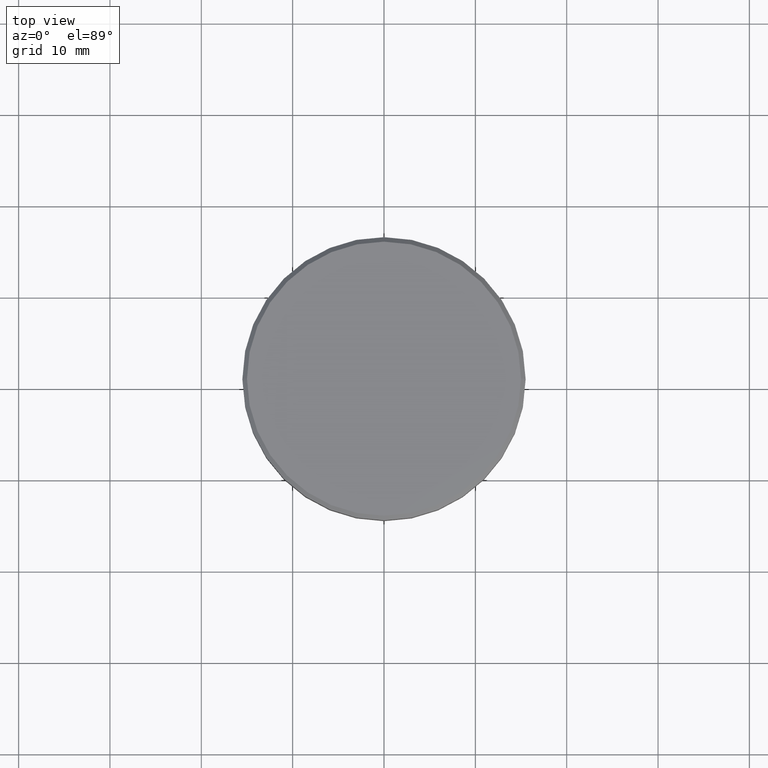
[diagram: clean part render]
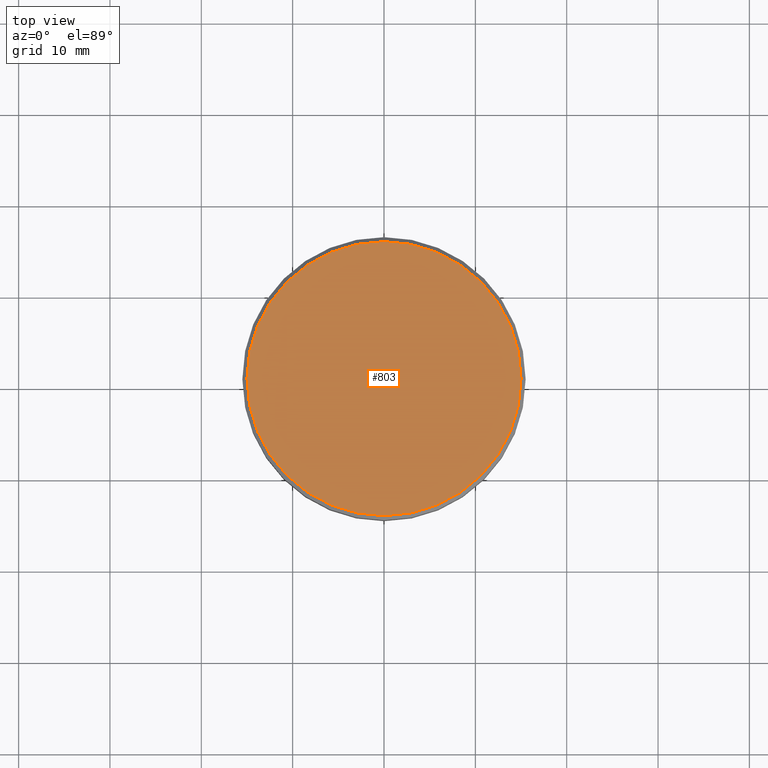
[diagram: same view with one face highlighted and labeled with its STEP entity id]
A machine part, top view. The second image highlights one B-rep face of the part: STEP entity #803.
In plain terms, the highlighted planar face has unit normal (0, -0, 1).
Its self-contained STEP definition (entity closure, byte-faithful):
#61 = DIRECTION ( 'NONE',  ( -0.000000000000000000, -0.000000000000000000, 1.000000000000000000 ) ) ;
#176 = CARTESIAN_POINT ( 'NONE',  ( 0.000000000000000000, 0.000000000000000000, 0.000000000000000000 ) ) ;
#183 = FACE_OUTER_BOUND ( 'NONE', #258, .T. ) ;
#190 = AXIS2_PLACEMENT_3D ( 'NONE', #176, #627, #723 ) ;
#214 = VERTEX_POINT ( 'NONE', #604 ) ;
#248 = CIRCLE ( 'NONE', #393, 14.99999999999999289 ) ;
#258 = EDGE_LOOP ( 'NONE', ( #512, #657 ) ) ;
#393 = AXIS2_PLACEMENT_3D ( 'NONE', #879, #61, #1063 ) ;
#512 = ORIENTED_EDGE ( 'NONE', *, *, #625, .T. ) ;
#542 = CARTESIAN_POINT ( 'NONE',  ( 0.000000000000000000, 0.000000000000000000, 0.000000000000000000 ) ) ;
#604 = CARTESIAN_POINT ( 'NONE',  ( -14.99999999999999289, 0.000000000000000000, 0.000000000000000000 ) ) ;
#625 = EDGE_CURVE ( 'NONE', #214, #1092, #248, .T. ) ;
#627 = DIRECTION ( 'NONE',  ( -0.000000000000000000, -0.000000000000000000, 1.000000000000000000 ) ) ;
#657 = ORIENTED_EDGE ( 'NONE', *, *, #715, .T. ) ;
#702 = CIRCLE ( 'NONE', #190, 14.99999999999999289 ) ;
#715 = EDGE_CURVE ( 'NONE', #1092, #214, #702, .T. ) ;
#723 = DIRECTION ( 'NONE',  ( 1.000000000000000000, 0.000000000000000000, 0.000000000000000000 ) ) ;
#779 = CARTESIAN_POINT ( 'NONE',  ( 14.99999999999999289, 1.867586368699713376E-15, 0.000000000000000000 ) ) ;
#803 = ADVANCED_FACE ( 'NONE', ( #183 ), #923, .T. ) ;
#879 = CARTESIAN_POINT ( 'NONE',  ( 0.000000000000000000, 0.000000000000000000, 0.000000000000000000 ) ) ;
#923 = PLANE ( 'NONE',  #1015 ) ;
#931 = DIRECTION ( 'NONE',  ( 0.000000000000000000, -0.000000000000000000, 1.000000000000000000 ) ) ;
#1014 = DIRECTION ( 'NONE',  ( 1.000000000000000000, 0.000000000000000000, 0.000000000000000000 ) ) ;
#1015 = AXIS2_PLACEMENT_3D ( 'NONE', #542, #931, #1014 ) ;
#1063 = DIRECTION ( 'NONE',  ( 1.000000000000000000, 0.000000000000000000, 0.000000000000000000 ) ) ;
#1092 = VERTEX_POINT ( 'NONE', #779 ) ;